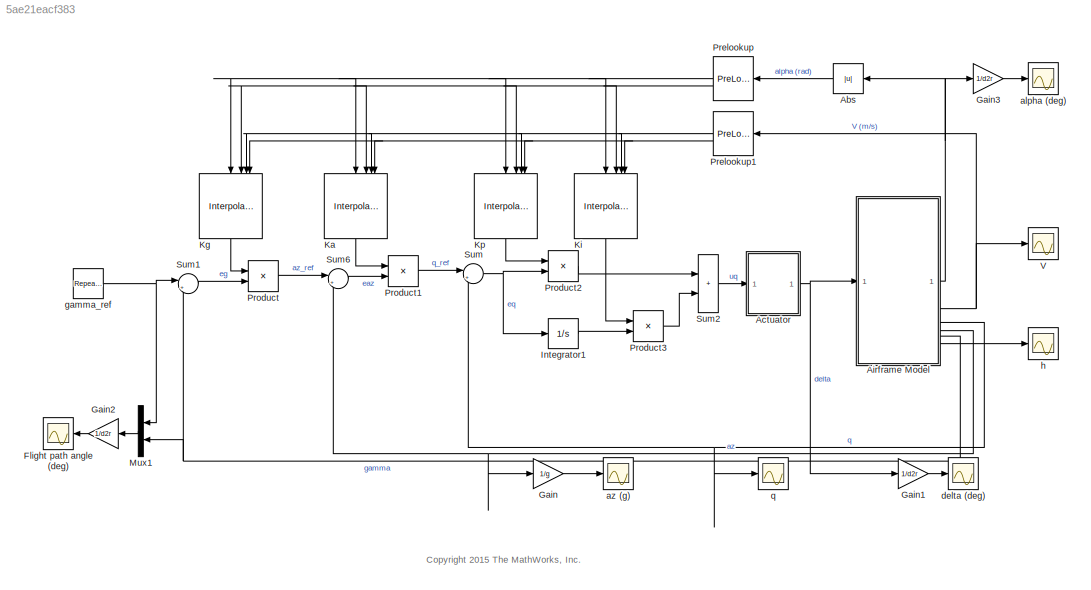
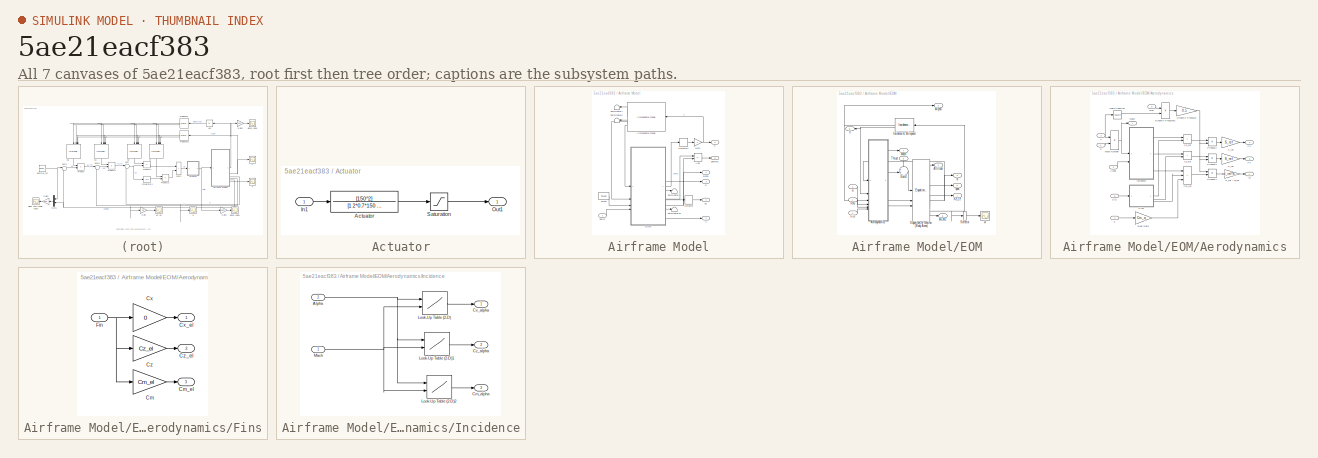
[diagram: thumbnail index - all 7 canvases of the model, root first then tree order]
MODEL slx_5ae21eacf383
KIND model
CONFIG AbsTol = 1e-6
CONFIG EnableMultiTasking = off
CONFIG FixedStep = auto
CONFIG MaxStep = auto
CONFIG MinStep = auto
CONFIG PreLoadFcn = x_ini = 0;\nh_ini = 10000/3.28084;  % 10,000 ft\nalpha_ini = 0;\ntheta_ini = 0;\nv_ini = 700;   % m/s\nq_ini = 0;\n
CONFIG RelTol = 1e-3
CONFIG SampleTimeConstraint = Unconstrained
CONFIG SolverName = ode45
CONFIG StartTime = 0.0
CONFIG StopTime = 50
WORKSPACE source: MATLAB code (in-file)
WORKSPACE code: AirframeData
WORKSPACE Kp0 = 0.1*ones(11,8)
WORKSPACE Ki0 = 2*ones(11,8)
WORKSPACE Ka0 = 0.001*ones(11,8)
WORKSPACE Kg0 = -1000*ones(11,8)
BLOCK [Abs] Abs
  SaturateOnIntegerOverflow = off
BLOCK [SubSystem] Actuator
BLOCK [TransferFcn] Actuator/Actuator
  Denominator = [1 2*0.7*150 150^2]
  Numerator = [150^2]
BLOCK [Inport] Actuator/In1
BLOCK [Outport] Actuator/Out1
  VectorParamsAs1DForOutWhenUnconnected = off
BLOCK [Saturate] Actuator/Saturation
  LowerLimit = fin_min
  UpperLimit = fin_max
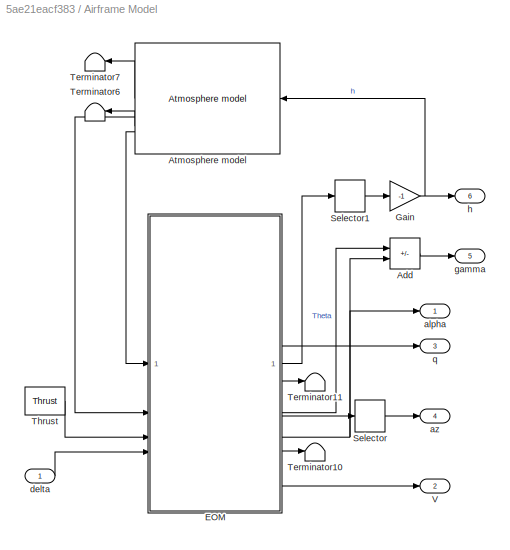
BLOCK [SubSystem] Airframe Model
BLOCK [Sum] Airframe Model/Add
  IconShape = rectangular
  Inputs = +-
BLOCK [Reference] Airframe Model/Atmosphere model  REF=aerospace/Atmosphere/Atmosphere  (lib defined in mdl_cf564d925549, slx_1354fe9238a2, +3 more)
model
  SourceBlock = aerospace/Atmosphere/Atmosphere\nmodel
  SourceType = Atmosphere Model
BLOCK [SubSystem] Airframe Model/EOM
BLOCK [Reference] Airframe Model/EOM/ Equations of Motion (Body Axes)  REF=aerospace/3DoF  (lib defined in mdl_cf564d925549, slx_1354fe9238a2, +3 more)
Equations
of
Motion / Equations of Motion
(Body Axes)
  SourceBlock = aerospace/3DoF\nEquations\nof\nMotion / Equations of Motion\n(Body Axes)
  SourceType = 3 DOF equations of motion
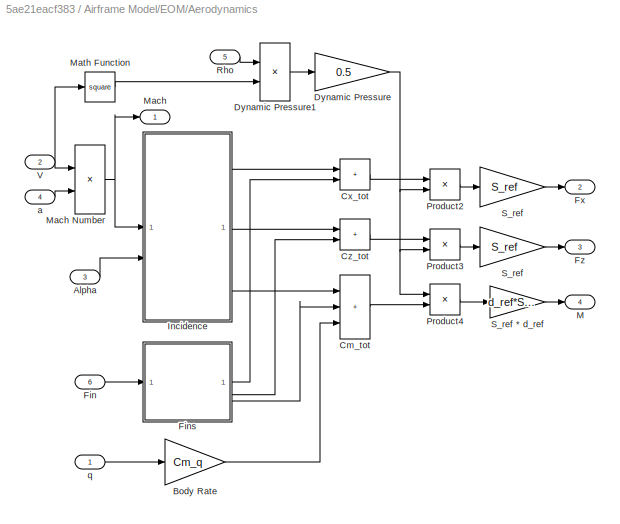
BLOCK [SubSystem] Airframe Model/EOM/Aerodynamics
BLOCK [Outport] Airframe Model/EOM/Aerodynamics/ M
  InitialOutput = 0
  Port = 4
  VectorParamsAs1DForOutWhenUnconnected = off
BLOCK [Outport] Airframe Model/EOM/Aerodynamics/ Mach
  InitialOutput = 0
  NameLocation = top
  VectorParamsAs1DForOutWhenUnconnected = off
BLOCK [Inport] Airframe Model/EOM/Aerodynamics/Alpha
  Port = 3
BLOCK [Gain] Airframe Model/EOM/Aerodynamics/Body Rate
  Gain = Cm_q
  OutDataTypeStr = Inherit: Same as input
  ParamDataTypeStr = Inherit: Same as input
  SaturateOnIntegerOverflow = on
BLOCK [Sum] Airframe Model/EOM/Aerodynamics/Cm_tot
  IconShape = rectangular
  InputSameDT = on
  Inputs = +++
  OutDataTypeStr = Inherit: Same as first input
  SaturateOnIntegerOverflow = on
BLOCK [Sum] Airframe Model/EOM/Aerodynamics/Cx_tot
  IconShape = rectangular
  InputSameDT = on
  OutDataTypeStr = Inherit: Same as first input
  SaturateOnIntegerOverflow = on
BLOCK [Sum] Airframe Model/EOM/Aerodynamics/Cz_tot
  IconShape = rectangular
  InputSameDT = on
  OutDataTypeStr = Inherit: Same as first input
  SaturateOnIntegerOverflow = on
BLOCK [Gain] Airframe Model/EOM/Aerodynamics/Dynamic Pressure
  Gain = 0.5
  OutDataTypeStr = Inherit: Same as input
  ParamDataTypeStr = Inherit: Same as input
  SaturateOnIntegerOverflow = on
BLOCK [Product] Airframe Model/EOM/Aerodynamics/Dynamic Pressure1
  InputSameDT = on
  OutDataTypeStr = Inherit: Same as first input
  SaturateOnIntegerOverflow = on
BLOCK [Inport] Airframe Model/EOM/Aerodynamics/Fin
  Port = 6
BLOCK [SubSystem] Airframe Model/EOM/Aerodynamics/Fins
BLOCK [Gain] Airframe Model/EOM/Aerodynamics/Fins/Cm
  Gain = Cm_el
  OutDataTypeStr = Inherit: Same as input
  ParamDataTypeStr = Inherit: Same as input
  SaturateOnIntegerOverflow = on
BLOCK [Outport] Airframe Model/EOM/Aerodynamics/Fins/Cm_el
  InitialOutput = 0
  Port = 3
  VectorParamsAs1DForOutWhenUnconnected = off
BLOCK [Gain] Airframe Model/EOM/Aerodynamics/Fins/Cx
  Gain = 0
  OutDataTypeStr = Inherit: Same as input
  ParamDataTypeStr = Inherit: Same as input
  SaturateOnIntegerOverflow = on
BLOCK [Outport] Airframe Model/EOM/Aerodynamics/Fins/Cx_el
  InitialOutput = 0
  VectorParamsAs1DForOutWhenUnconnected = off
BLOCK [Gain] Airframe Model/EOM/Aerodynamics/Fins/Cz
  Gain = Cz_el
  OutDataTypeStr = Inherit: Same as input
  ParamDataTypeStr = Inherit: Same as input
  SaturateOnIntegerOverflow = on
BLOCK [Outport] Airframe Model/EOM/Aerodynamics/Fins/Cz_el
  InitialOutput = 0
  Port = 2
  VectorParamsAs1DForOutWhenUnconnected = off
BLOCK [Inport] Airframe Model/EOM/Aerodynamics/Fins/Fin
BLOCK [Outport] Airframe Model/EOM/Aerodynamics/Fx
  InitialOutput = [0]
  Port = 2
  VectorParamsAs1DForOutWhenUnconnected = off
BLOCK [Outport] Airframe Model/EOM/Aerodynamics/Fz
  InitialOutput = 0
  Port = 3
  VectorParamsAs1DForOutWhenUnconnected = off
BLOCK [SubSystem] Airframe Model/EOM/Aerodynamics/Incidence
BLOCK [Inport] Airframe Model/EOM/Aerodynamics/Incidence/Alpha
  Port = 2
BLOCK [Outport] Airframe Model/EOM/Aerodynamics/Incidence/Cm_alpha
  InitialOutput = 0
  Port = 3
  VectorParamsAs1DForOutWhenUnconnected = off
BLOCK [Outport] Airframe Model/EOM/Aerodynamics/Incidence/Cx_alpha
  InitialOutput = 0
  VectorParamsAs1DForOutWhenUnconnected = off
BLOCK [Outport] Airframe Model/EOM/Aerodynamics/Incidence/Cz_alpha
  InitialOutput = 0
  Port = 2
  VectorParamsAs1DForOutWhenUnconnected = off
BLOCK [Lookup2D] Airframe Model/EOM/Aerodynamics/Incidence/Look-Up Table (2-D)
  ColumnIndex = Mach_vec
  InputSameDT = off
  RowIndex = alpha_vec
  Table = Cx_alpha
BLOCK [Lookup2D] Airframe Model/EOM/Aerodynamics/Incidence/Look-Up Table (2-D)1
  ColumnIndex = Mach_vec
  InputSameDT = off
  RowIndex = alpha_vec
  Table = Cz_alpha
BLOCK [Lookup2D] Airframe Model/EOM/Aerodynamics/Incidence/Look-Up Table (2-D)2
  ColumnIndex = Mach_vec
  InputSameDT = off
  RowIndex = alpha_vec
  Table = Cm_alpha
BLOCK [Inport] Airframe Model/EOM/Aerodynamics/Incidence/Mach
BLOCK [Product] Airframe Model/EOM/Aerodynamics/Mach Number
  InputSameDT = on
  Inputs = */
  OutDataTypeStr = Inherit: Same as first input
  SaturateOnIntegerOverflow = on
BLOCK [Math] Airframe Model/EOM/Aerodynamics/Math Function
  Operator = square
  SignedPower = on
BLOCK [Product] Airframe Model/EOM/Aerodynamics/Product2
  InputSameDT = on
  OutDataTypeStr = Inherit: Same as first input
  SaturateOnIntegerOverflow = on
BLOCK [Product] Airframe Model/EOM/Aerodynamics/Product3
  InputSameDT = on
  OutDataTypeStr = Inherit: Same as first input
  SaturateOnIntegerOverflow = on
BLOCK [Product] Airframe Model/EOM/Aerodynamics/Product4
  InputSameDT = on
  OutDataTypeStr = Inherit: Same as first input
  SaturateOnIntegerOverflow = on
BLOCK [Inport] Airframe Model/EOM/Aerodynamics/Rho
  NameLocation = top
  Port = 5
BLOCK [Gain] Airframe Model/EOM/Aerodynamics/S_ref
  Gain = S_ref
  OutDataTypeStr = Inherit: Same as input
  ParamDataTypeStr = Inherit: Same as input
  SaturateOnIntegerOverflow = on
BLOCK [Gain] Airframe Model/EOM/Aerodynamics/S_ref 
  Gain = S_ref
  OutDataTypeStr = Inherit: Same as input
  ParamDataTypeStr = Inherit: Same as input
  SaturateOnIntegerOverflow = on
BLOCK [Gain] Airframe Model/EOM/Aerodynamics/S_ref * d_ref
  Gain = d_ref*S_ref
  OutDataTypeStr = Inherit: Same as input
  ParamDataTypeStr = Inherit: Same as input
  SaturateOnIntegerOverflow = on
BLOCK [Inport] Airframe Model/EOM/Aerodynamics/V
  Port = 2
BLOCK [Inport] Airframe Model/EOM/Aerodynamics/a
  Port = 4
BLOCK [Inport] Airframe Model/EOM/Aerodynamics/q
BLOCK [Outport] Airframe Model/EOM/Alpha
  InitialOutput = 0
  Port = 3
  VectorParamsAs1DForOutWhenUnconnected = off
BLOCK [Outport] Airframe Model/EOM/Attitude
  InitialOutput = 0
  Port = 2
  VectorParamsAs1DForOutWhenUnconnected = off
BLOCK [Outport] Airframe Model/EOM/Ax,Az
  InitialOutput = 0
  Port = 6
  VectorParamsAs1DForOutWhenUnconnected = off
BLOCK [Inport] Airframe Model/EOM/Fin
  Port = 4
BLOCK [Reference] Airframe Model/EOM/Incidence & Airspeed  REF=aerospace/3DoF  (lib defined in mdl_cf564d925549, slx_1354fe9238a2, +3 more)
Equations
of
Motion /Incidence 
& Airspeed
  NameLocation = top
  SourceBlock = aerospace/3DoF\nEquations\nof\nMotion /Incidence \n& Airspeed
  SourceType = Incidence and Airspeed
BLOCK [Outport] Airframe Model/EOM/Mach
  InitialOutput = 0
  NameLocation = top
  Port = 7
  VectorParamsAs1DForOutWhenUnconnected = off
BLOCK [Inport] Airframe Model/EOM/Rho
BLOCK [Selector] Airframe Model/EOM/Selector
  IndexOptions = Index vector (dialog)
  Indices = [2]
  InputPortWidth = 2
  OutputSizes = 1
BLOCK [Sum] Airframe Model/EOM/Sum2
  InputSameDT = on
  Inputs = ++|
  OutDataTypeStr = Inherit: Same as first input
  SaturateOnIntegerOverflow = on
BLOCK [Inport] Airframe Model/EOM/Thrust
  NameLocation = left
  Port = 3
BLOCK [Outport] Airframe Model/EOM/V
  InitialOutput = 0
  Port = 8
  VectorParamsAs1DForOutWhenUnconnected = off
BLOCK [Outport] Airframe Model/EOM/Xe,Ze
  InitialOutput = 0
  VectorParamsAs1DForOutWhenUnconnected = off
BLOCK [Inport] Airframe Model/EOM/a
  Port = 2
BLOCK [Outport] Airframe Model/EOM/q
  InitialOutput = 0
  Port = 4
  VectorParamsAs1DForOutWhenUnconnected = off
BLOCK [Outport] Airframe Model/EOM/qdot
  InitialOutput = 0
  Port = 5
  VectorParamsAs1DForOutWhenUnconnected = off
BLOCK [Scope] Airframe Model/EOM/w
  Floating = off
  NumInputPorts = 1
  ScopeSpecificationString = Simulink.scopes.TimeScopeBlockCfg('CurrentConfiguration', extmgr.ConfigurationSet(extmgr.Configuration('Core','General UI',true),extmgr.Configuration('Core','Source UI',true),extmgr.Configuration('Sources','WiredSimulink',true,'DataLoggingVariableName','ScopeData1','DataLoggingSaveFormat','StructureWithTime','DataLoggingLimitDataPoints',true,'DataLoggingDecimation','1'),extmgr.Configuration('Visua...<+880ch>
BLOCK [Gain] Airframe Model/Gain
  Gain = -1
BLOCK [Selector] Airframe Model/Selector
  IndexOptions = Index vector (dialog)
  Indices = [2]
  InputPortWidth = 2
  OutputSizes = 1
BLOCK [Selector] Airframe Model/Selector1
  IndexOptions = Index vector (dialog)
  Indices = [2]
  InputPortWidth = 2
  OutputSizes = 1
BLOCK [Terminator] Airframe Model/Terminator10
BLOCK [Terminator] Airframe Model/Terminator11
BLOCK [Terminator] Airframe Model/Terminator6
BLOCK [Terminator] Airframe Model/Terminator7
BLOCK [Constant] Airframe Model/Thrust
  Value = Thrust
BLOCK [Outport] Airframe Model/V
  InitialOutput = 0
  Port = 2
  VectorParamsAs1DForOutWhenUnconnected = off
BLOCK [Outport] Airframe Model/alpha
  InitialOutput = 0
  VectorParamsAs1DForOutWhenUnconnected = off
BLOCK [Outport] Airframe Model/az
  InitialOutput = 0
  Port = 4
  VectorParamsAs1DForOutWhenUnconnected = off
BLOCK [Inport] Airframe Model/delta
BLOCK [Outport] Airframe Model/gamma
  InitialOutput = 0
  Port = 5
  VectorParamsAs1DForOutWhenUnconnected = off
BLOCK [Outport] Airframe Model/h
  InitialOutput = 0
  Port = 6
  VectorParamsAs1DForOutWhenUnconnected = off
BLOCK [Outport] Airframe Model/q
  InitialOutput = 0
  Port = 3
  VectorParamsAs1DForOutWhenUnconnected = off
BLOCK [Scope] Flight path angle (deg)
  Floating = off
  NumInputPorts = 1
  ScopeSpecificationString = Simulink.scopes.TimeScopeBlockCfg('CurrentConfiguration', extmgr.ConfigurationSet(extmgr.Configuration('Core','General UI',true),extmgr.Configuration('Core','Source UI',true),extmgr.Configuration('Sources','WiredSimulink',true,'DataLoggingSaveFormat','StructureWithTime','DataLoggingLimitDataPoints',true,'DataLoggingDecimation','1'),extmgr.Configuration('Visuals','Time Domain',true,'SerializedDispl...<+1672ch>
BLOCK [Gain] Gain
  Gain = 1/g
BLOCK [Gain] Gain1
  Gain = 1/d2r
BLOCK [Gain] Gain2
  Gain = 1/d2r
BLOCK [Gain] Gain3
  Gain = 1/d2r
BLOCK [Integrator] Integrator1
BLOCK [Interpolation_n-D] Ka
  InputPortMap = u0,u1,u2,u3
  IntermediateResultsDataTypeStr = Inherit: Inherit via internal rule
  InternalRulePriority = Speed
  NameLocation = left
  Table = Ka0
BLOCK [Interpolation_n-D] Kg
  InputPortMap = u0,u1,u2,u3
  IntermediateResultsDataTypeStr = Inherit: Inherit via internal rule
  InternalRulePriority = Speed
  NameLocation = left
  Table = Kg0
BLOCK [Interpolation_n-D] Ki
  InputPortMap = u0,u1,u2,u3
  IntermediateResultsDataTypeStr = Inherit: Inherit via internal rule
  InternalRulePriority = Speed
  NameLocation = left
  Table = Ki0
BLOCK [Interpolation_n-D] Kp
  InputPortMap = u0,u1,u2,u3
  IntermediateResultsDataTypeStr = Inherit: Inherit via internal rule
  InternalRulePriority = Speed
  NameLocation = left
  Table = Kp0
BLOCK [Mux] Mux1
  DisplayOption = bar
  Inputs = 2
  NameLocation = top
BLOCK [PreLookup] Prelookup
  BreakpointsData = (0:2:20)*(pi/180)
  ExtrapMethod = Linear
  InputPortMap = u0
BLOCK [PreLookup] Prelookup1
  BreakpointsData = 700:100:1400
  ExtrapMethod = Linear
  InputPortMap = u0
BLOCK [Product] Product
BLOCK [Product] Product1
BLOCK [Product] Product2
BLOCK [Product] Product3
BLOCK [Sum] Sum
  Inputs = |++
  SaturateOnIntegerOverflow = on
BLOCK [Sum] Sum1
  Inputs = |+-
  SaturateOnIntegerOverflow = on
BLOCK [Sum] Sum2
  IconShape = rectangular
  SaturateOnIntegerOverflow = on
BLOCK [Sum] Sum6
  Inputs = |+-
  SaturateOnIntegerOverflow = on
BLOCK [Scope] V
  Floating = off
  NumInputPorts = 1
  ScopeSpecificationString = Simulink.scopes.TimeScopeBlockCfg('CurrentConfiguration', extmgr.ConfigurationSet(extmgr.Configuration('Core','General UI',true),extmgr.Configuration('Core','Source UI',true),extmgr.Configuration('Sources','WiredSimulink',true,'DataLoggingVariableName','ScopeData3','DataLoggingSaveFormat','StructureWithTime','DataLoggingLimitDataPoints',true,'DataLoggingDecimation','1'),extmgr.Configuration('Visua...<+1627ch>
BLOCK [Scope] alpha (deg)
  Floating = off
  NumInputPorts = 1
  ScopeSpecificationString = Simulink.scopes.TimeScopeBlockCfg('CurrentConfiguration', extmgr.ConfigurationSet(extmgr.Configuration('Core','General UI',true),extmgr.Configuration('Core','Source UI',true),extmgr.Configuration('Sources','WiredSimulink',true,'DataLoggingVariableName','ScopeData7','DataLoggingSaveFormat','StructureWithTime','DataLoggingLimitDataPoints',true,'DataLoggingDecimation','1'),extmgr.Configuration('Visua...<+1626ch>
BLOCK [Scope] az (g)
  Floating = off
  NumInputPorts = 1
  ScopeSpecificationString = Simulink.scopes.TimeScopeBlockCfg('CurrentConfiguration', extmgr.ConfigurationSet(extmgr.Configuration('Core','General UI',true),extmgr.Configuration('Core','Source UI',true),extmgr.Configuration('Sources','WiredSimulink',true,'DataLoggingVariableName','ScopeData2','DataLoggingSaveFormat','StructureWithTime','DataLoggingLimitDataPoints',true,'DataLoggingDecimation','1'),extmgr.Configuration('Visua...<+1625ch>
BLOCK [Scope] delta (deg)
  Floating = off
  NumInputPorts = 1
  ScopeSpecificationString = Simulink.scopes.TimeScopeBlockCfg('CurrentConfiguration', extmgr.ConfigurationSet(extmgr.Configuration('Core','General UI',true),extmgr.Configuration('Core','Source UI',true),extmgr.Configuration('Sources','WiredSimulink',true,'DataLoggingVariableName','ScopeData6','DataLoggingSaveFormat','StructureWithTime','DataLoggingLimitDataPoints',true,'DataLoggingDecimation','1'),extmgr.Configuration('Visua...<+1626ch>
BLOCK [Reference] gamma_ref  REF=simulink/Sources/Repeating
Sequence
  SourceBlock = simulink/Sources/Repeating\nSequence
  SourceType = Repeating table
BLOCK [Scope] h
  Floating = off
  NumInputPorts = 1
  ScopeSpecificationString = Simulink.scopes.TimeScopeBlockCfg('CurrentConfiguration', extmgr.ConfigurationSet(extmgr.Configuration('Core','General UI',true),extmgr.Configuration('Core','Source UI',true),extmgr.Configuration('Sources','WiredSimulink',true,'DataLoggingVariableName','ScopeData4','DataLoggingSaveFormat','StructureWithTime','DataLoggingLimitDataPoints',true,'DataLoggingDecimation','1'),extmgr.Configuration('Visua...<+1627ch>
BLOCK [Scope] q
  Floating = off
  NumInputPorts = 1
  ScopeSpecificationString = Simulink.scopes.TimeScopeBlockCfg('CurrentConfiguration', extmgr.ConfigurationSet(extmgr.Configuration('Core','General UI',true),extmgr.Configuration('Core','Source UI',true),extmgr.Configuration('Sources','WiredSimulink',true,'DataLoggingVariableName','ScopeData5','DataLoggingSaveFormat','StructureWithTime','DataLoggingLimitDataPoints',true,'DataLoggingDecimation','1'),extmgr.Configuration('Visua...<+1625ch>
ANNOTATION (root): <copyright redacted>
LINE Abs:1 -> Prelookup:1
LINE Actuator/Actuator:1 -> Actuator/Saturation:1
LINE Actuator/In1:1 -> Actuator/Actuator:1
LINE Actuator/Saturation:1 -> Actuator/Out1:1
NET Actuator:1 -> Airframe Model:1, Gain1:1
LINE Airframe Model/Add:1 -> Airframe Model/gamma:1
LINE Airframe Model/Atmosphere model:1 -> Airframe Model/Terminator7:1
LINE Airframe Model/Atmosphere model:2 -> Airframe Model/EOM:2
LINE Airframe Model/Atmosphere model:3 -> Airframe Model/Terminator6:1
LINE Airframe Model/Atmosphere model:4 -> Airframe Model/EOM:1
LINE Airframe Model/EOM/ Equations of Motion (Body Axes):1 -> Airframe Model/EOM/Attitude:1
NET Airframe Model/EOM/ Equations of Motion (Body Axes):2 -> Airframe Model/EOM/Aerodynamics:1, Airframe Model/EOM/q:1
LINE Airframe Model/EOM/ Equations of Motion (Body Axes):3 -> Airframe Model/EOM/qdot:1
LINE Airframe Model/EOM/ Equations of Motion (Body Axes):4 -> Airframe Model/EOM/Xe,Ze:1
NET Airframe Model/EOM/ Equations of Motion (Body Axes):5 -> Airframe Model/EOM/Incidence & Airspeed:1, Airframe Model/EOM/Selector:1
LINE Airframe Model/EOM/ Equations of Motion (Body Axes):6 -> Airframe Model/EOM/Ax,Az:1
LINE Airframe Model/EOM/Aerodynamics/Alpha:1 -> Airframe Model/EOM/Aerodynamics/Incidence:2
LINE Airframe Model/EOM/Aerodynamics/Body Rate:1 -> Airframe Model/EOM/Aerodynamics/Cm_tot:3
LINE Airframe Model/EOM/Aerodynamics/Cm_tot:1 -> Airframe Model/EOM/Aerodynamics/Product4:2
LINE Airframe Model/EOM/Aerodynamics/Cx_tot:1 -> Airframe Model/EOM/Aerodynamics/Product2:1
LINE Airframe Model/EOM/Aerodynamics/Cz_tot:1 -> Airframe Model/EOM/Aerodynamics/Product3:1
LINE Airframe Model/EOM/Aerodynamics/Dynamic Pressure1:1 -> Airframe Model/EOM/Aerodynamics/Dynamic Pressure:1
NET Airframe Model/EOM/Aerodynamics/Dynamic Pressure:1 -> Airframe Model/EOM/Aerodynamics/Product2:2, Airframe Model/EOM/Aerodynamics/Product3:2, Airframe Model/EOM/Aerodynamics/Product4:1
LINE Airframe Model/EOM/Aerodynamics/Fin:1 -> Airframe Model/EOM/Aerodynamics/Fins:1
LINE Airframe Model/EOM/Aerodynamics/Fins/Cm:1 -> Airframe Model/EOM/Aerodynamics/Fins/Cm_el:1
LINE Airframe Model/EOM/Aerodynamics/Fins/Cx:1 -> Airframe Model/EOM/Aerodynamics/Fins/Cx_el:1
LINE Airframe Model/EOM/Aerodynamics/Fins/Cz:1 -> Airframe Model/EOM/Aerodynamics/Fins/Cz_el:1
NET Airframe Model/EOM/Aerodynamics/Fins/Fin:1 -> Airframe Model/EOM/Aerodynamics/Fins/Cm:1, Airframe Model/EOM/Aerodynamics/Fins/Cx:1, Airframe Model/EOM/Aerodynamics/Fins/Cz:1
LINE Airframe Model/EOM/Aerodynamics/Fins:1 -> Airframe Model/EOM/Aerodynamics/Cx_tot:2
LINE Airframe Model/EOM/Aerodynamics/Fins:2 -> Airframe Model/EOM/Aerodynamics/Cz_tot:2
LINE Airframe Model/EOM/Aerodynamics/Fins:3 -> Airframe Model/EOM/Aerodynamics/Cm_tot:2
NET Airframe Model/EOM/Aerodynamics/Incidence/Alpha:1 -> Airframe Model/EOM/Aerodynamics/Incidence/Look-Up Table (2-D)1:1, Airframe Model/EOM/Aerodynamics/Incidence/Look-Up Table (2-D)2:1, Airframe Model/EOM/Aerodynamics/Incidence/Look-Up Table (2-D):1
LINE Airframe Model/EOM/Aerodynamics/Incidence/Look-Up Table (2-D)1:1 -> Airframe Model/EOM/Aerodynamics/Incidence/Cz_alpha:1
LINE Airframe Model/EOM/Aerodynamics/Incidence/Look-Up Table (2-D)2:1 -> Airframe Model/EOM/Aerodynamics/Incidence/Cm_alpha:1
LINE Airframe Model/EOM/Aerodynamics/Incidence/Look-Up Table (2-D):1 -> Airframe Model/EOM/Aerodynamics/Incidence/Cx_alpha:1
NET Airframe Model/EOM/Aerodynamics/Incidence/Mach:1 -> Airframe Model/EOM/Aerodynamics/Incidence/Look-Up Table (2-D)1:2, Airframe Model/EOM/Aerodynamics/Incidence/Look-Up Table (2-D)2:2, Airframe Model/EOM/Aerodynamics/Incidence/Look-Up Table (2-D):2
LINE Airframe Model/EOM/Aerodynamics/Incidence:1 -> Airframe Model/EOM/Aerodynamics/Cx_tot:1
LINE Airframe Model/EOM/Aerodynamics/Incidence:2 -> Airframe Model/EOM/Aerodynamics/Cz_tot:1
LINE Airframe Model/EOM/Aerodynamics/Incidence:3 -> Airframe Model/EOM/Aerodynamics/Cm_tot:1
NET Airframe Model/EOM/Aerodynamics/Mach Number:1 -> Airframe Model/EOM/Aerodynamics/ Mach:1, Airframe Model/EOM/Aerodynamics/Incidence:1
LINE Airframe Model/EOM/Aerodynamics/Math Function:1 -> Airframe Model/EOM/Aerodynamics/Dynamic Pressure1:2
LINE Airframe Model/EOM/Aerodynamics/Product2:1 -> Airframe Model/EOM/Aerodynamics/S_ref:1
LINE Airframe Model/EOM/Aerodynamics/Product3:1 -> Airframe Model/EOM/Aerodynamics/S_ref :1
LINE Airframe Model/EOM/Aerodynamics/Product4:1 -> Airframe Model/EOM/Aerodynamics/S_ref * d_ref:1
LINE Airframe Model/EOM/Aerodynamics/Rho:1 -> Airframe Model/EOM/Aerodynamics/Dynamic Pressure1:1
LINE Airframe Model/EOM/Aerodynamics/S_ref * d_ref:1 -> Airframe Model/EOM/Aerodynamics/ M:1
LINE Airframe Model/EOM/Aerodynamics/S_ref :1 -> Airframe Model/EOM/Aerodynamics/Fz:1
LINE Airframe Model/EOM/Aerodynamics/S_ref:1 -> Airframe Model/EOM/Aerodynamics/Fx:1
NET Airframe Model/EOM/Aerodynamics/V:1 -> Airframe Model/EOM/Aerodynamics/Mach Number:1, Airframe Model/EOM/Aerodynamics/Math Function:1
LINE Airframe Model/EOM/Aerodynamics/a:1 -> Airframe Model/EOM/Aerodynamics/Mach Number:2
LINE Airframe Model/EOM/Aerodynamics/q:1 -> Airframe Model/EOM/Aerodynamics/Body Rate:1
LINE Airframe Model/EOM/Aerodynamics:1 -> Airframe Model/EOM/Mach:1
LINE Airframe Model/EOM/Aerodynamics:2 -> Airframe Model/EOM/Sum2:2
LINE Airframe Model/EOM/Aerodynamics:3 -> Airframe Model/EOM/ Equations of Motion (Body Axes):2
LINE Airframe Model/EOM/Aerodynamics:4 -> Airframe Model/EOM/ Equations of Motion (Body Axes):3
LINE Airframe Model/EOM/Fin:1 -> Airframe Model/EOM/Aerodynamics:6
NET Airframe Model/EOM/Incidence & Airspeed:1 -> Airframe Model/EOM/Aerodynamics:3, Airframe Model/EOM/Alpha:1
NET Airframe Model/EOM/Incidence & Airspeed:2 -> Airframe Model/EOM/Aerodynamics:2, Airframe Model/EOM/V:1
LINE Airframe Model/EOM/Rho:1 -> Airframe Model/EOM/Aerodynamics:5
LINE Airframe Model/EOM/Selector:1 -> Airframe Model/EOM/w:1
LINE Airframe Model/EOM/Sum2:1 -> Airframe Model/EOM/ Equations of Motion (Body Axes):1
LINE Airframe Model/EOM/Thrust:1 -> Airframe Model/EOM/Sum2:1
LINE Airframe Model/EOM/a:1 -> Airframe Model/EOM/Aerodynamics:4
LINE Airframe Model/EOM:1 -> Airframe Model/Selector1:1
LINE Airframe Model/EOM:2 -> Airframe Model/Add:1
NET Airframe Model/EOM:3 -> Airframe Model/Add:2, Airframe Model/alpha:1
LINE Airframe Model/EOM:4 -> Airframe Model/q:1
LINE Airframe Model/EOM:5 -> Airframe Model/Terminator11:1
LINE Airframe Model/EOM:6 -> Airframe Model/Selector:1
LINE Airframe Model/EOM:7 -> Airframe Model/Terminator10:1
LINE Airframe Model/EOM:8 -> Airframe Model/V:1
NET Airframe Model/Gain:1 -> Airframe Model/Atmosphere model:1, Airframe Model/h:1
LINE Airframe Model/Selector1:1 -> Airframe Model/Gain:1
LINE Airframe Model/Selector:1 -> Airframe Model/az:1
LINE Airframe Model/Thrust:1 -> Airframe Model/EOM:3
LINE Airframe Model/delta:1 -> Airframe Model/EOM:4
NET Airframe Model:1 -> Abs:1, Gain3:1
NET Airframe Model:2 -> Prelookup1:1, V:1
NET Airframe Model:3 -> Sum:2, q:1
NET Airframe Model:4 -> Gain:1, Sum6:2
NET Airframe Model:5 -> Mux1:2, Sum1:2
LINE Airframe Model:6 -> h:1
LINE Gain1:1 -> delta (deg):1
LINE Gain2:1 -> Flight path angle (deg):1
LINE Gain3:1 -> alpha (deg):1
LINE Gain:1 -> az (g):1
LINE Integrator1:1 -> Product3:2
LINE Ka:1 -> Product1:1
LINE Kg:1 -> Product:1
LINE Ki:1 -> Product3:1
LINE Kp:1 -> Product2:1
LINE Mux1:1 -> Gain2:1
NET Prelookup1:1 -> Ka:3, Kg:3, Ki:3, Kp:3
NET Prelookup1:2 -> Ka:4, Kg:4, Ki:4, Kp:4
NET Prelookup:1 -> Ka:1, Kg:1, Ki:1, Kp:1
NET Prelookup:2 -> Ka:2, Kg:2, Ki:2, Kp:2
LINE Product1:1 -> Sum:1
LINE Product2:1 -> Sum2:1
LINE Product3:1 -> Sum2:2
LINE Product:1 -> Sum6:1
LINE Sum1:1 -> Product:2
LINE Sum2:1 -> Actuator:1
LINE Sum6:1 -> Product1:2
NET Sum:1 -> Integrator1:1, Product2:2
NET gamma_ref:1 -> Mux1:1, Sum1:1
note: NET lines group one-source signal fan-out (src -> all destinations, sorted); 1:1 wires keep LINE
